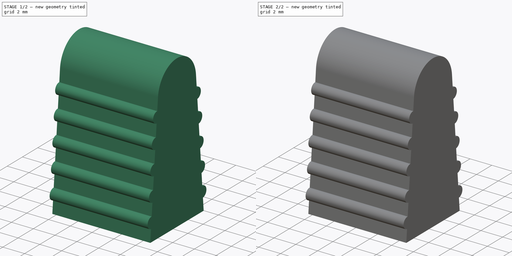
[diagram: build sequence overview — one tinted view per stage of 2, left to right]
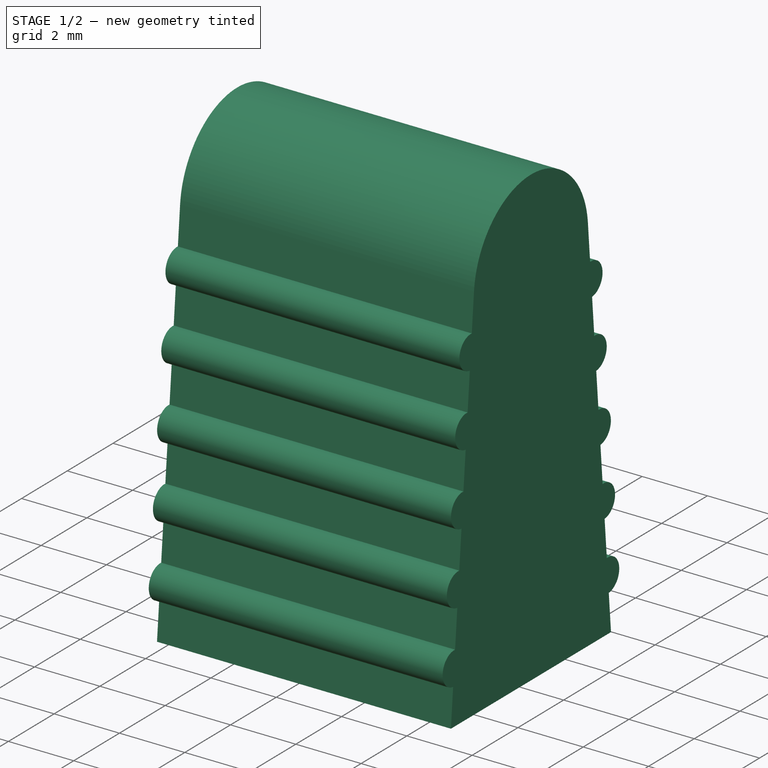
[diagram: stage 1 of 2 — iso view after this stage's code; geometry added in this stage tinted green]
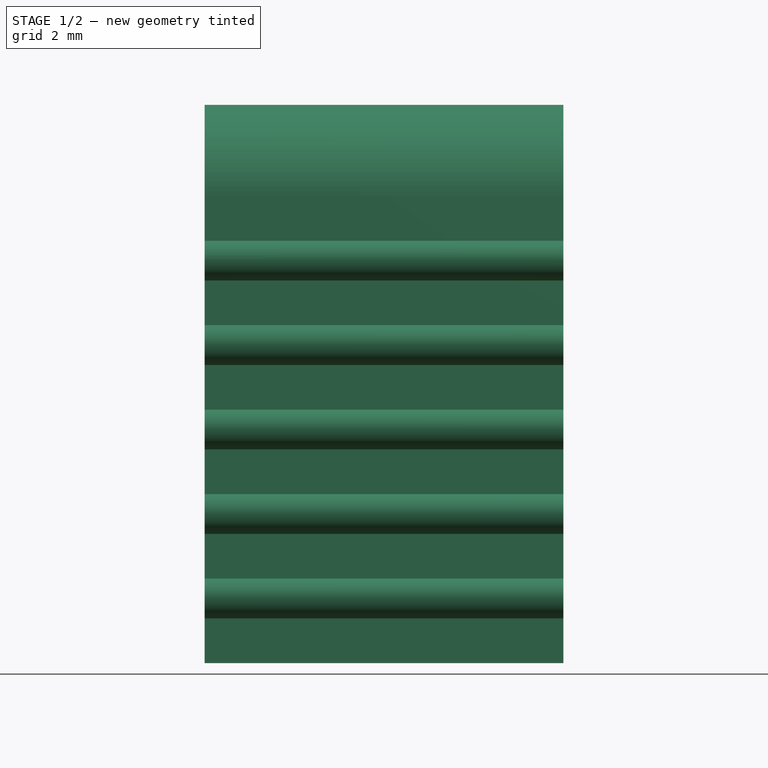
[diagram: stage 1 of 2 — front view after this stage's code; geometry added in this stage tinted green]
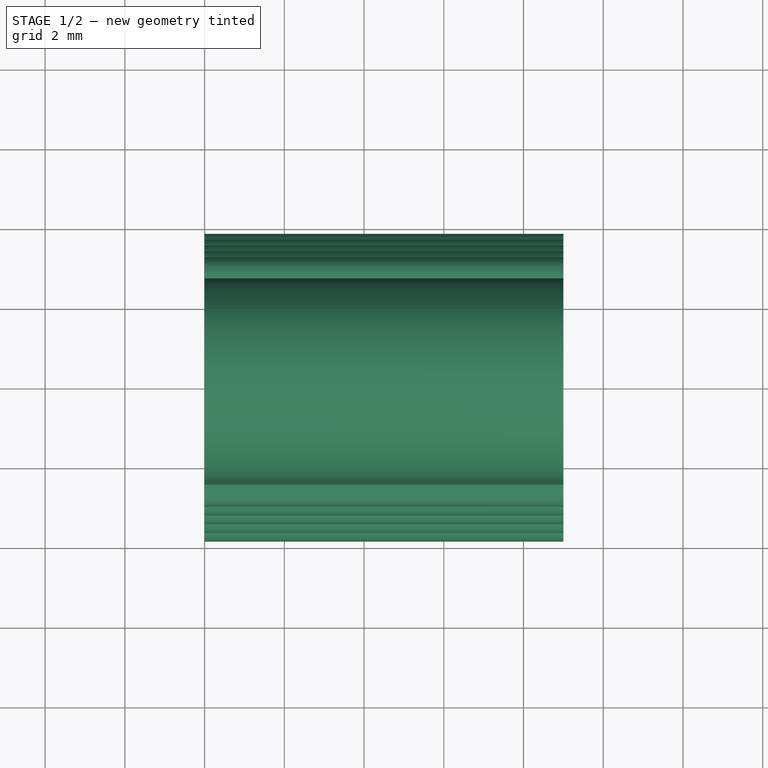
[diagram: stage 1 of 2 — top view after this stage's code; geometry added in this stage tinted green]
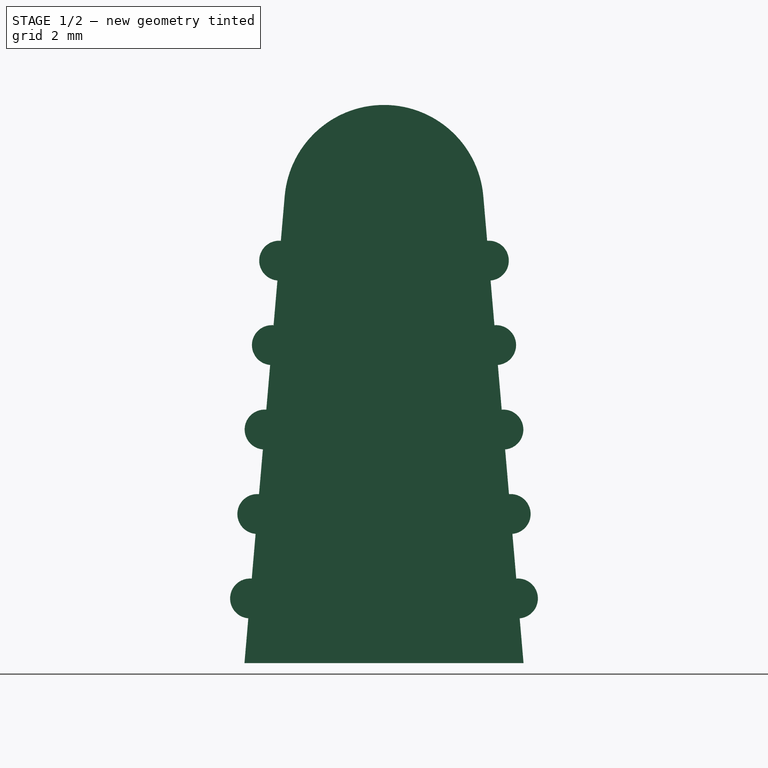
[diagram: stage 1 of 2 — right view after this stage's code; geometry added in this stage tinted green]
FCSTD DOCUMENT
Label: NASA-switch-tip
objects: Sketcher::SketchObject×2, PartDesign::Pad×1, PartDesign::Pocket×1
note: 6 computed .brp shape members not serialized (recipe doc carries the construction recipe); baked Part::Feature solids carry a one-line shape summary decoded from their .brp

FEATURE [Sketcher::SketchObject] Sketch  label="Profile"
  Placement = pos=(0,0,0) rot=(0.57735,0.57735,0.57735;2.0944rad)
  sketch-geometry (26):
    g0: LineSegment StartX=-3.5 StartY=0 StartZ=0 EndX=-3.40332 EndY=1.12217 EndZ=0
    g1: LineSegment StartX=-3.31749 StartY=2.11848 StartZ=0 EndX=-3.22081 EndY=3.24065 EndZ=0
    g2: LineSegment StartX=-3.13498 StartY=4.23696 StartZ=0 EndX=-3.0383 EndY=5.35914 EndZ=0
    g3: LineSegment StartX=-2.95247 StartY=6.35545 StartZ=0 EndX=-2.85579 EndY=7.47762 EndZ=0
    g4: LineSegment StartX=-2.76996 StartY=8.47393 StartZ=0 EndX=-2.67328 EndY=9.5961 EndZ=0
    g5: LineSegment StartX=-2.58745 StartY=10.5924 StartZ=0 EndX=-2.49077 EndY=11.7146 EndZ=0
    g6: ArcOfCircle CenterX=-3.36041 CenterY=1.62033 CenterZ=0 NormalX=0 NormalY=0 NormalZ=1 Radius=0.5 StartAngle=1.48486 EndAngle=4.62645
    g7: ArcOfCircle CenterX=-3.1779 CenterY=3.73881 CenterZ=0 NormalX=0 NormalY=0 NormalZ=1 Radius=0.5 StartAngle=1.48486 EndAngle=4.62645
    g8: ArcOfCircle CenterX=-2.99539 CenterY=5.85729 CenterZ=0 NormalX=0 NormalY=0 NormalZ=1 Radius=0.5 StartAngle=1.48486 EndAngle=4.62645
    g9: ArcOfCircle CenterX=-2.81288 CenterY=7.97577 CenterZ=0 NormalX=0 NormalY=0 NormalZ=1 Radius=0.5 StartAngle=1.48486 EndAngle=4.62645
    g10: ArcOfCircle CenterX=-2.63037 CenterY=10.0943 CenterZ=0 NormalX=0 NormalY=0 NormalZ=1 Radius=0.5 StartAngle=1.48486 EndAngle=4.62645
    g11: LineSegment [constr] StartX=-3.5 StartY=0 StartZ=0 EndX=0 EndY=40.6262 EndZ=0
    g12: LineSegment StartX=2.49077 StartY=11.7146 StartZ=0 EndX=2.58745 EndY=10.5924 EndZ=0
    g13: ArcOfCircle CenterX=0 CenterY=11.5 CenterZ=0 NormalX=0 NormalY=0 NormalZ=1 Radius=2.5 StartAngle=0.0859391 EndAngle=3.05565
    g14: GeomPoint [constr] X=0 Y=14 Z=0
    g15: ArcOfCircle CenterX=2.63037 CenterY=10.0943 CenterZ=0 NormalX=0 NormalY=0 NormalZ=1 Radius=0.5 StartAngle=4.79833 EndAngle=7.93992
    g16: ArcOfCircle CenterX=2.81288 CenterY=7.97577 CenterZ=0 NormalX=0 NormalY=0 NormalZ=1 Radius=0.5 StartAngle=4.79833 EndAngle=7.93992
    g17: ArcOfCircle CenterX=2.99539 CenterY=5.85729 CenterZ=0 NormalX=0 NormalY=0 NormalZ=1 Radius=0.5 StartAngle=4.79833 EndAngle=7.93992
    g18: ArcOfCircle CenterX=3.1779 CenterY=3.73881 CenterZ=0 NormalX=0 NormalY=0 NormalZ=1 Radius=0.5 StartAngle=4.79833 EndAngle=7.93992
    g19: ArcOfCircle CenterX=3.36041 CenterY=1.62033 CenterZ=0 NormalX=0 NormalY=0 NormalZ=1 Radius=0.5 StartAngle=4.79833 EndAngle=7.93992
    g20: LineSegment StartX=2.67328 StartY=9.5961 StartZ=0 EndX=2.76996 EndY=8.47393 EndZ=0
    g21: LineSegment StartX=2.85579 StartY=7.47762 StartZ=0 EndX=2.95247 EndY=6.35545 EndZ=0
    g22: LineSegment StartX=3.0383 StartY=5.35914 StartZ=0 EndX=3.13498 EndY=4.23696 EndZ=0
    g23: LineSegment StartX=3.22081 StartY=3.24065 StartZ=0 EndX=3.31749 EndY=2.11848 EndZ=0
    g24: LineSegment StartX=3.40332 StartY=1.12217 StartZ=0 EndX=3.5 EndY=0 EndZ=0
    g25: LineSegment StartX=-3.5 StartY=0 StartZ=0 EndX=3.5 EndY=0 EndZ=0
  constraints (76):
    c: Coincident(g6,g0)
    c: Coincident(g6,g1)
    c: Coincident(g7,g1)
    c: Coincident(g7,g2)
    c: Coincident(g8,g2)
    c: Coincident(g8,g3)
    c: Coincident(g9,g3)
    c: Coincident(g9,g4)
    c: Coincident(g10,g4)
    c: Coincident(g5,g10)
    c: Equal(g6,g7)
    c: Equal(g7,g8)
    c: Equal(g8,g9)
    c: Equal(g9,g10)
    c: PointOnObject(g5,g11)
    c: PointOnObject(g4,g11)
    c: PointOnObject(g10,g11)
    c: PointOnObject(g4,g11)
    c: PointOnObject(g9,g11)
    c: PointOnObject(g3,g11)
    c: PointOnObject(g3,g11)
    c: PointOnObject(g8,g11)
    c: PointOnObject(g2,g11)
    c: PointOnObject(g2,g11)
    c: PointOnObject(g7,g11)
    c: PointOnObject(g1,g11)
    c: PointOnObject(g1,g11)
    c: PointOnObject(g6,g11)
    c: PointOnObject(g0,g11)
    c: Coincident(g0,g11)
    c: PointOnObject(g0,g-1)
    c: PointOnObject(g11,g-2)
    c: Symmetric(g12,g5,g-2)
    c: Tangent(g5,g13)
    c: Tangent(g12,g13)
    c: PointOnObject(g13,g-2)
    c: PointOnObject(g5,g11)
    c: DistanceX(g-1,g0) = -3.5
    c: PointOnObject(g14,g13)
    c: PointOnObject(g14,g-2)
    c: DistanceY(g-1,g14) = 14
    c: Radius(g13) = 2.5
    c: Coincident(g15,g12)
    c: Coincident(g20,g15)
    c: Coincident(g20,g16)
    c: Coincident(g21,g16)
    c: Coincident(g21,g17)
    c: Coincident(g22,g17)
    c: Coincident(g22,g18)
    c: Coincident(g23,g18)
    c: Coincident(g23,g19)
    c: Coincident(g24,g19)
    c: PointOnObject(g24,g-1)
    c: Symmetric(g15,g10,g-2)
    c: Radius(g10) = 0.5
    c: Symmetric(g15,g4,g-2)
    c: Symmetric(g16,g4,g-2)
    c: Symmetric(g16,g9,g-2)
    c: Symmetric(g16,g3,g-2)
    c: Symmetric(g17,g3,g-2)
    c: Symmetric(g17,g8,g-2)
    c: Symmetric(g17,g2,g-2)
    c: Symmetric(g18,g2,g-2)
    c: Symmetric(g18,g7,g-2)
    c: Symmetric(g19,g1,g-2)
    c: Equal(g5,g4)
    c: Equal(g4,g3)
    c: Equal(g3,g2)
    c: Equal(g2,g1)
    c: Equal(g1,g0)
    c: Symmetric(g19,g0,g-2)
    c: Symmetric(g19,g6,g-2)
    c: Symmetric(g18,g1,g-2)
    c: Symmetric(g24,g0,g-2)
    c: Coincident(g25,g24)
    c: Coincident(g25,g0)
FEATURE [PartDesign::Pad] Pad  label="Shape"
  Length = 9
  Length2 = 100
  Placement = pos=(0,0,0) rot=(0.57735,0.57735,0.57735;2.0944rad)
  Sketch = -> Sketch
  Type = 0
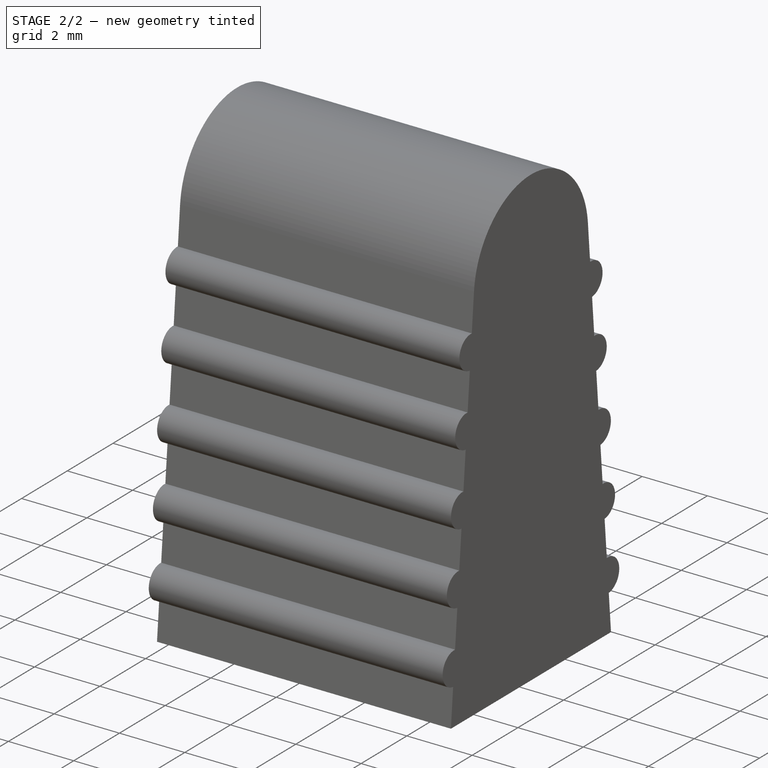
[diagram: stage 2 of 2 — iso view after this stage's code; geometry added in this stage tinted green]
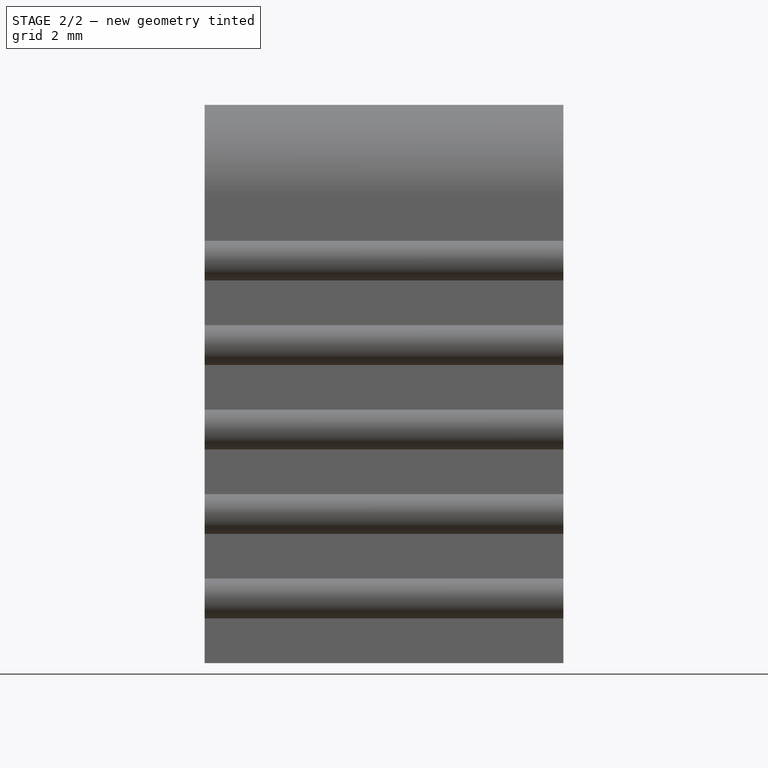
[diagram: stage 2 of 2 — front view after this stage's code; geometry added in this stage tinted green]
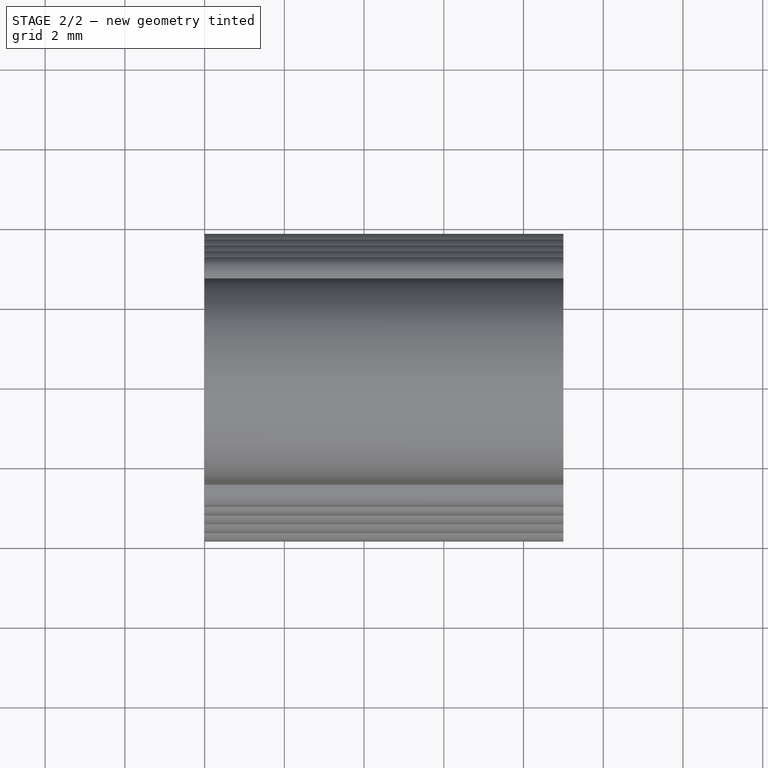
[diagram: stage 2 of 2 — top view after this stage's code; geometry added in this stage tinted green]
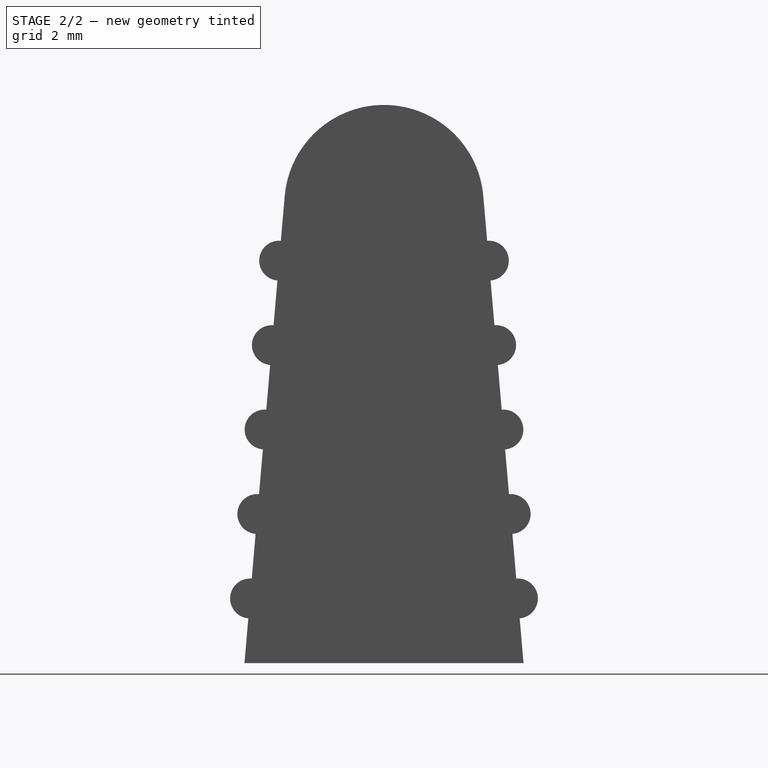
[diagram: stage 2 of 2 — right view after this stage's code; geometry added in this stage tinted green]
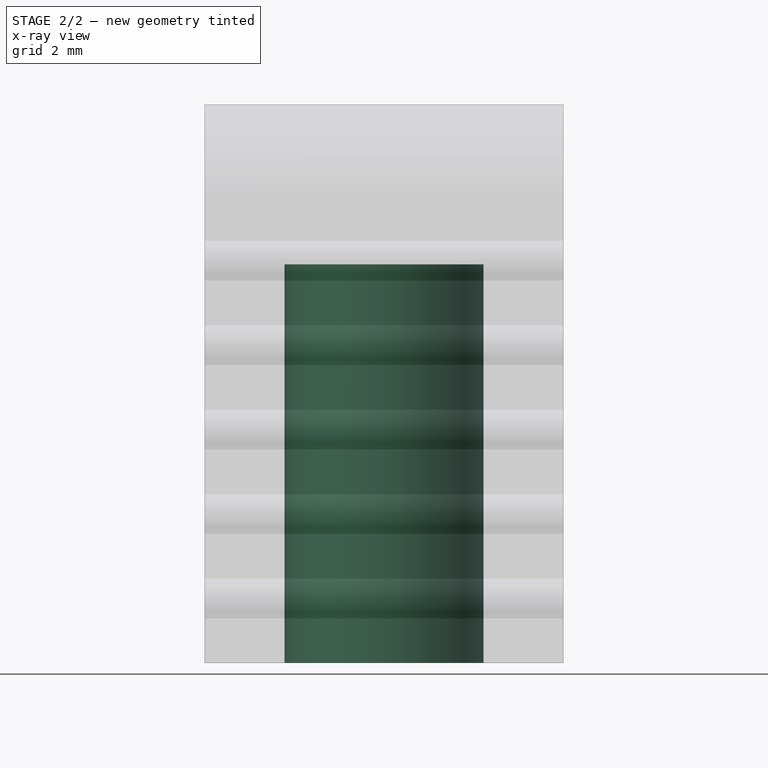
[diagram: stage 2 of 2 — x-ray composite at the front view; earlier geometry ghosted, this stage's added geometry solid]
FEATURE [Sketcher::SketchObject] Sketch001
  ExternalGeometry = -> [Pad]
  Placement = pos=(0,0,0) rot=(0.707107,0.707107,0;3.14159rad)
  Support = -> Pad [Face1]
  sketch-geometry (2):
    g0: Circle CenterX=0 CenterY=4.5 CenterZ=0 NormalX=0 NormalY=0 NormalZ=1 Radius=2.5
    g1: LineSegment [constr] StartX=-3.5 StartY=9 StartZ=0 EndX=3.5 EndY=0 EndZ=0
  constraints (5):
    c: PointOnObject(g0,g-2)
    c: Coincident(g1,g-4)
    c: Coincident(g1,g-3)
    c: PointOnObject(g0,g1)
    c: Radius(g0) = 2.5
FEATURE [PartDesign::Pocket] Pocket  label="Hole"
  Length = 10
  Placement = pos=(0,0,0) rot=(0.57735,0.57735,0.57735;2.0944rad)
  Sketch = -> Sketch001
  Type = 0
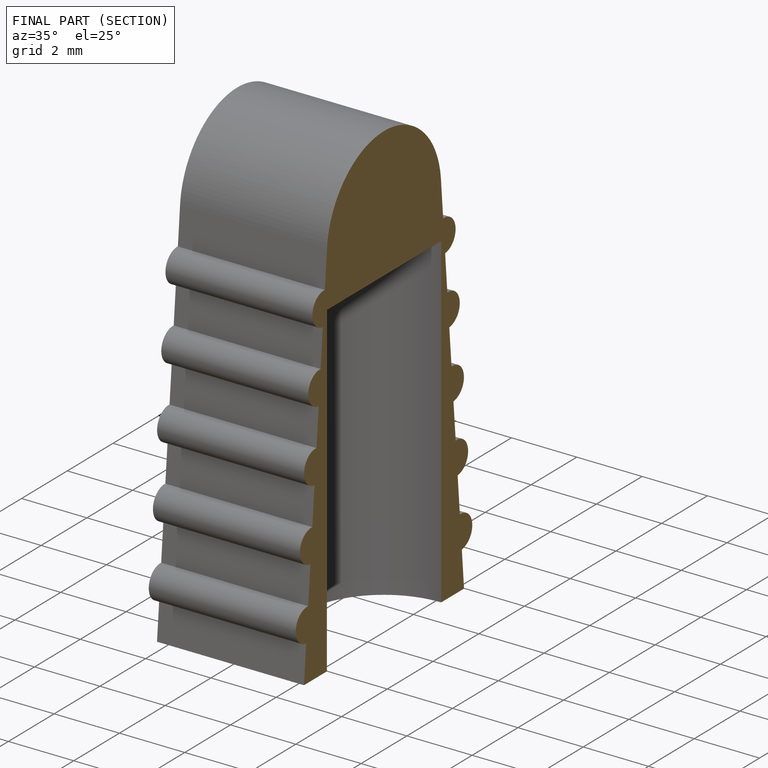
[diagram: finished part — half-section view (interior)]
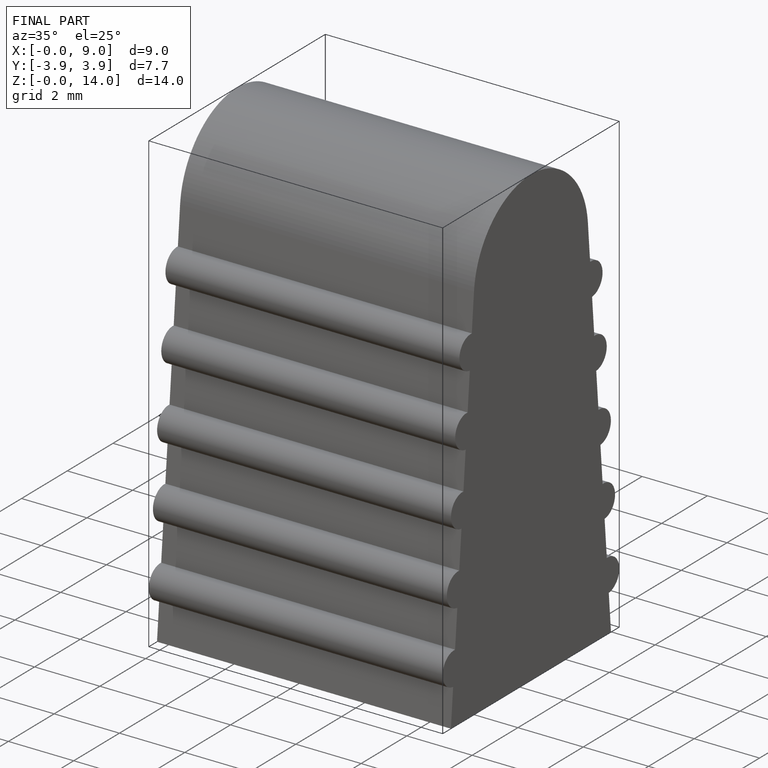
[diagram: finished part — iso view with bounding-box wireframe]
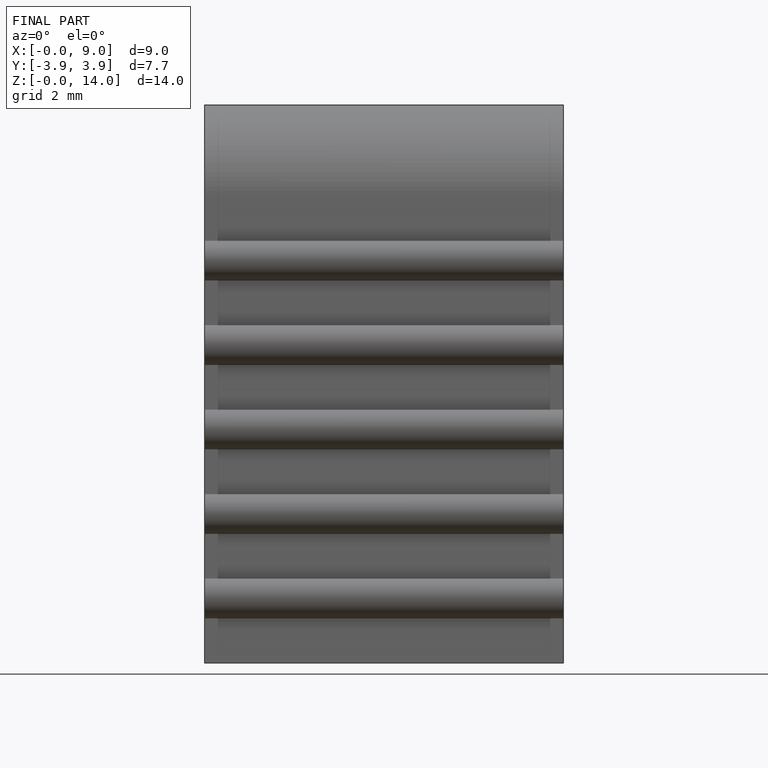
[diagram: finished part — front view with bounding-box wireframe]
